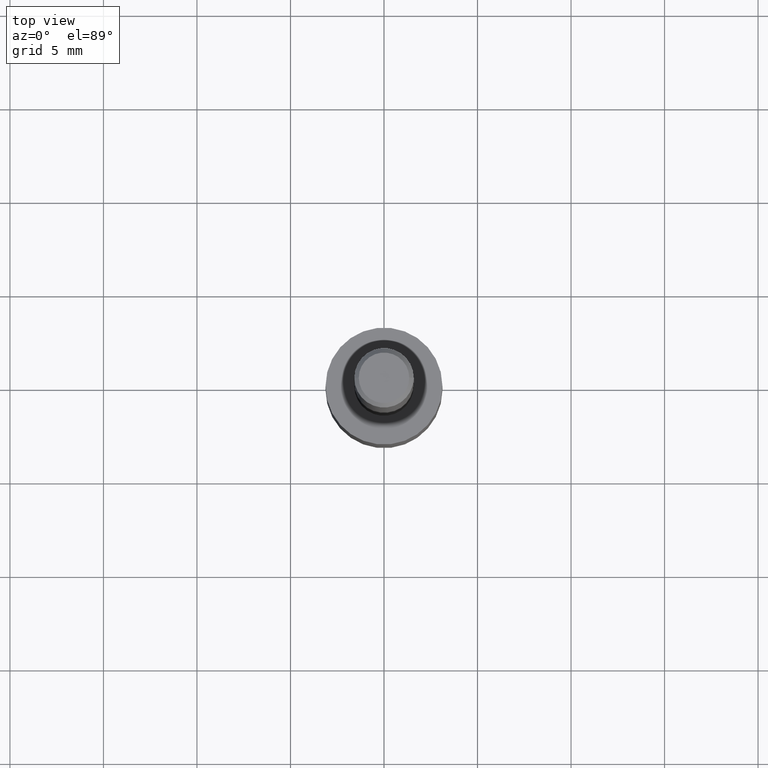
[diagram: clean part render]
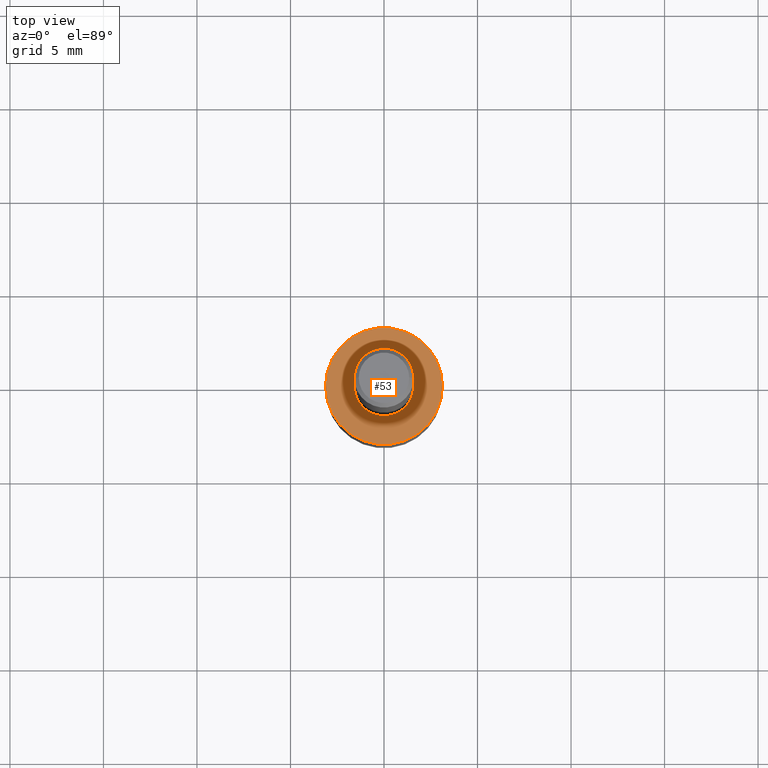
[diagram: same view with one face highlighted and labeled with its STEP entity id]
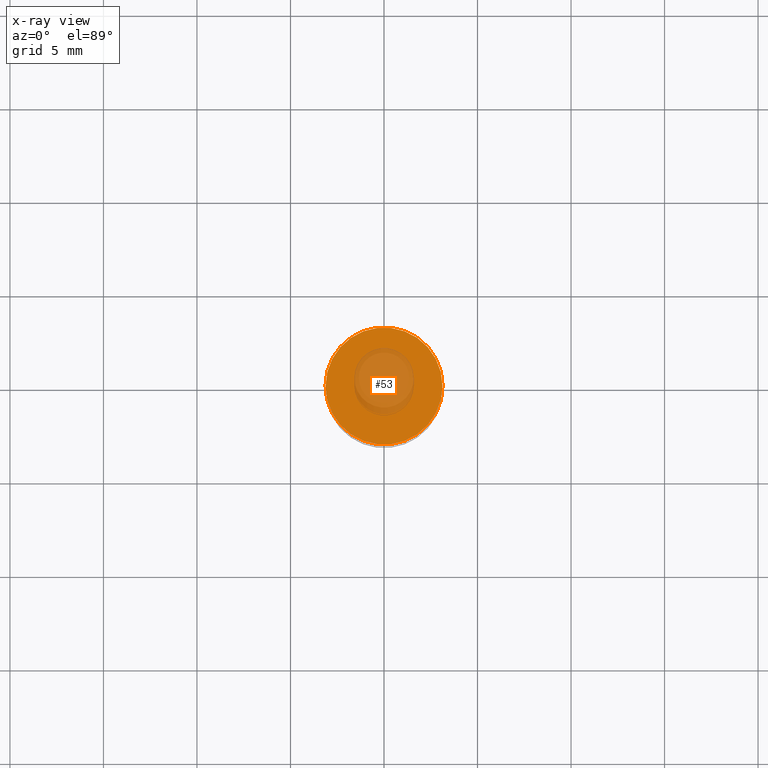
[diagram: x-ray of the same camera — body ghosted, the highlighted face saturated]
A machine part, top view. The second image highlights one B-rep face of the part: STEP entity #53.
The next image is the same camera in x-ray: the body ghosted, the highlighted face saturated — about 30% of this face is hidden behind the body in this view.
In plain terms, the highlighted planar face has unit normal (0, -0, -1).
Its self-contained STEP definition (entity closure, byte-faithful):
#11 = DIRECTION ( 'NONE',  ( -2.445468806185136597E-29, 3.491481338843145583E-15, 1.000000000000000000 ) ) ;
#40 = DIRECTION ( 'NONE',  ( 2.438088387897960049E-29, -3.491481338843145188E-15, -1.000000000000000000 ) ) ;
#53 = ADVANCED_FACE ( 'NONE', ( #60 ), #147, .F. ) ;
#60 = FACE_OUTER_BOUND ( 'NONE', #237, .T. ) ;
#67 = EDGE_CURVE ( 'NONE', #163, #132, #276, .T. ) ;
#100 = AXIS2_PLACEMENT_3D ( 'NONE', #284, #294, #185 ) ;
#114 = DIRECTION ( 'NONE',  ( 1.000000000000000000, -6.982962677686263555E-15, 0.000000000000000000 ) ) ;
#132 = VERTEX_POINT ( 'NONE', #155 ) ;
#142 = CARTESIAN_POINT ( 'NONE',  ( 2.445468806185136877E-29, -3.491481338843145977E-15, -1.000000000000000222 ) ) ;
#147 = PLANE ( 'NONE',  #225 ) ;
#155 = CARTESIAN_POINT ( 'NONE',  ( 0.1230500000000000066, -4.350734896332440799E-15, -1.000000000000000222 ) ) ;
#163 = VERTEX_POINT ( 'NONE', #278 ) ;
#164 = CIRCLE ( 'NONE', #100, 0.1230500000000000066 ) ;
#174 = AXIS2_PLACEMENT_3D ( 'NONE', #142, #11, #114 ) ;
#180 = ORIENTED_EDGE ( 'NONE', *, *, #67, .T. ) ;
#185 = DIRECTION ( 'NONE',  ( 1.000000000000000000, -6.982962677686263555E-15, 0.000000000000000000 ) ) ;
#206 = ORIENTED_EDGE ( 'NONE', *, *, #220, .T. ) ;
#220 = EDGE_CURVE ( 'NONE', #132, #163, #164, .T. ) ;
#225 = AXIS2_PLACEMENT_3D ( 'NONE', #303, #40, #326 ) ;
#237 = EDGE_LOOP ( 'NONE', ( #206, #180 ) ) ;
#276 = CIRCLE ( 'NONE', #174, 0.1230500000000000066 ) ;
#278 = CARTESIAN_POINT ( 'NONE',  ( -0.1230500000000000066, -3.389859708662582850E-15, -1.000000000000000222 ) ) ;
#284 = CARTESIAN_POINT ( 'NONE',  ( 2.445468806185136877E-29, -3.491481338843145977E-15, -1.000000000000000222 ) ) ;
#294 = DIRECTION ( 'NONE',  ( -2.445468806185136597E-29, 3.491481338843145583E-15, 1.000000000000000000 ) ) ;
#303 = CARTESIAN_POINT ( 'NONE',  ( 3.220616818410641601E-29, -2.381425266651246989E-15, -1.000000000000000222 ) ) ;
#326 = DIRECTION ( 'NONE',  ( -1.000000000000000000, 6.982962677686265922E-15, -4.876176775795935793E-29 ) ) ;